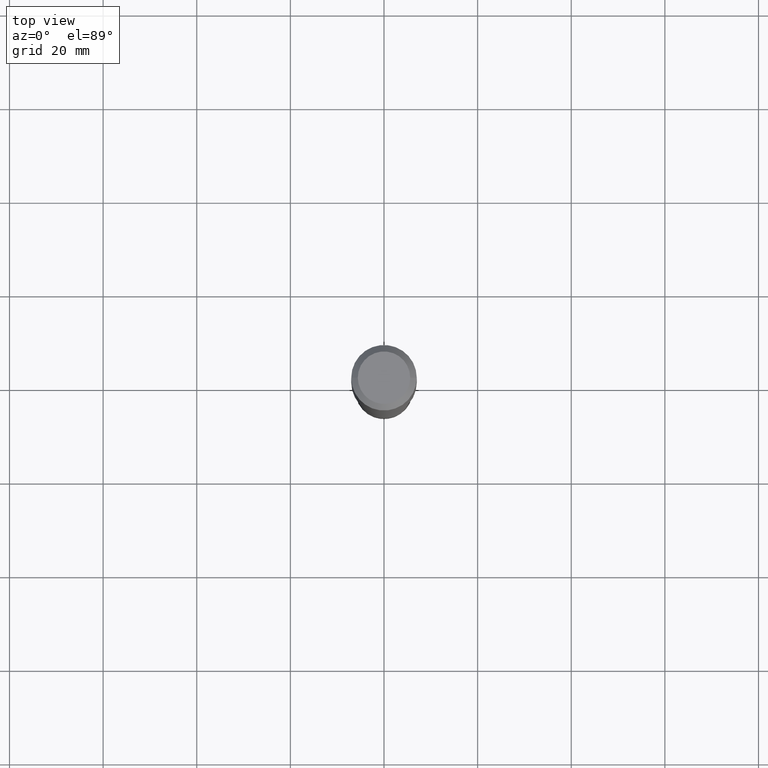
[diagram: clean part render]
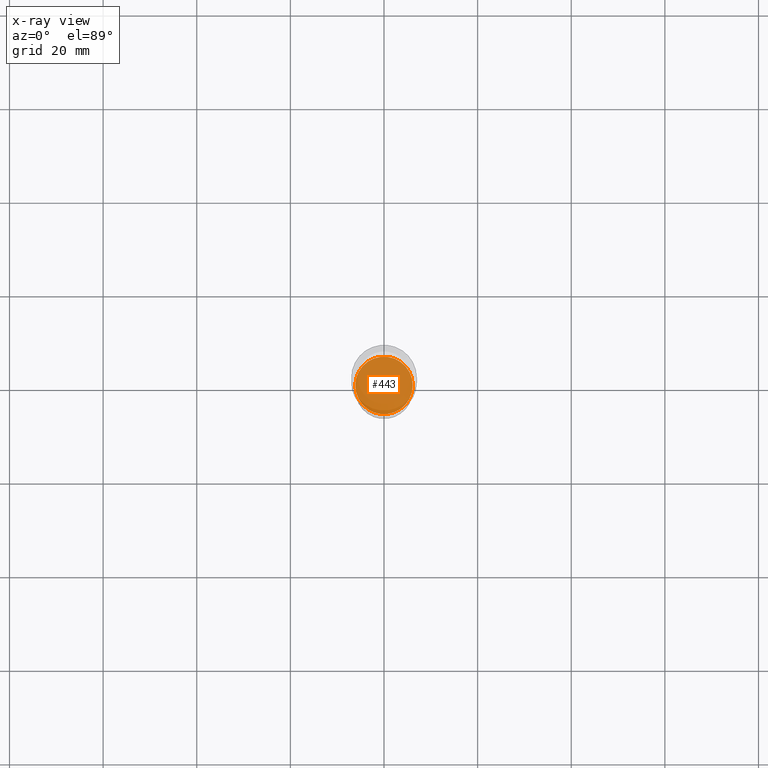
[diagram: x-ray — body ghosted, one internal face saturated and labeled with its STEP entity id]
A machine part, top view, then the same camera in x-ray: the body is ghosted and one INTERNAL B-rep face — a face not visible from any outside direction — is saturated and labeled: STEP entity #443.
In plain terms, the highlighted planar face has unit normal (-0, 0, 1).
Its self-contained STEP definition (entity closure, byte-faithful):
#37 = ORIENTED_EDGE ( 'NONE', *, *, #480, .F. ) ;
#45 = CIRCLE ( 'NONE', #376, 0.2417000000000000259 ) ;
#90 = DIRECTION ( 'NONE',  ( -2.438088387897960049E-29, 3.491481338843145188E-15, 1.000000000000000000 ) ) ;
#98 = CARTESIAN_POINT ( 'NONE',  ( 9.242404806096105288E-29, -1.319570457202378340E-14, -3.779399999999999427 ) ) ;
#113 = VERTEX_POINT ( 'NONE', #383 ) ;
#120 = CARTESIAN_POINT ( 'NONE',  ( 9.242404806096105288E-29, -1.319570457202378340E-14, -3.779399999999999427 ) ) ;
#148 = ORIENTED_EDGE ( 'NONE', *, *, #154, .F. ) ;
#154 = EDGE_CURVE ( 'NONE', #113, #503, #45, .T. ) ;
#165 = CARTESIAN_POINT ( 'NONE',  ( -0.2417000000000000259, -1.147567355251750908E-14, -3.779399999999999427 ) ) ;
#224 = EDGE_LOOP ( 'NONE', ( #148, #37 ) ) ;
#229 = DIRECTION ( 'NONE',  ( 1.000000000000000000, -6.982962677686267499E-15, 0.000000000000000000 ) ) ;
#250 = PLANE ( 'NONE',  #469 ) ;
#252 = DIRECTION ( 'NONE',  ( 1.000000000000000000, -6.982962677686267499E-15, 0.000000000000000000 ) ) ;
#258 = CIRCLE ( 'NONE', #441, 0.2417000000000000259 ) ;
#296 = DIRECTION ( 'NONE',  ( 1.000000000000000000, -6.982962677686265922E-15, 4.876176775795935793E-29 ) ) ;
#312 = DIRECTION ( 'NONE',  ( -2.445468806185136597E-29, 3.491481338843145583E-15, 1.000000000000000000 ) ) ;
#374 = CARTESIAN_POINT ( 'NONE',  ( 9.242404806096105288E-29, -1.319570457202378340E-14, -3.779399999999999427 ) ) ;
#376 = AXIS2_PLACEMENT_3D ( 'NONE', #120, #312, #229 ) ;
#383 = CARTESIAN_POINT ( 'NONE',  ( 0.2417000000000000259, -1.488348665122055458E-14, -3.779399999999999427 ) ) ;
#402 = FACE_OUTER_BOUND ( 'NONE', #224, .T. ) ;
#441 = AXIS2_PLACEMENT_3D ( 'NONE', #98, #484, #252 ) ;
#443 = ADVANCED_FACE ( 'NONE', ( #402 ), #250, .F. ) ;
#469 = AXIS2_PLACEMENT_3D ( 'NONE', #374, #90, #296 ) ;
#480 = EDGE_CURVE ( 'NONE', #503, #113, #258, .T. ) ;
#484 = DIRECTION ( 'NONE',  ( -2.445468806185136597E-29, 3.491481338843145583E-15, 1.000000000000000000 ) ) ;
#503 = VERTEX_POINT ( 'NONE', #165 ) ;